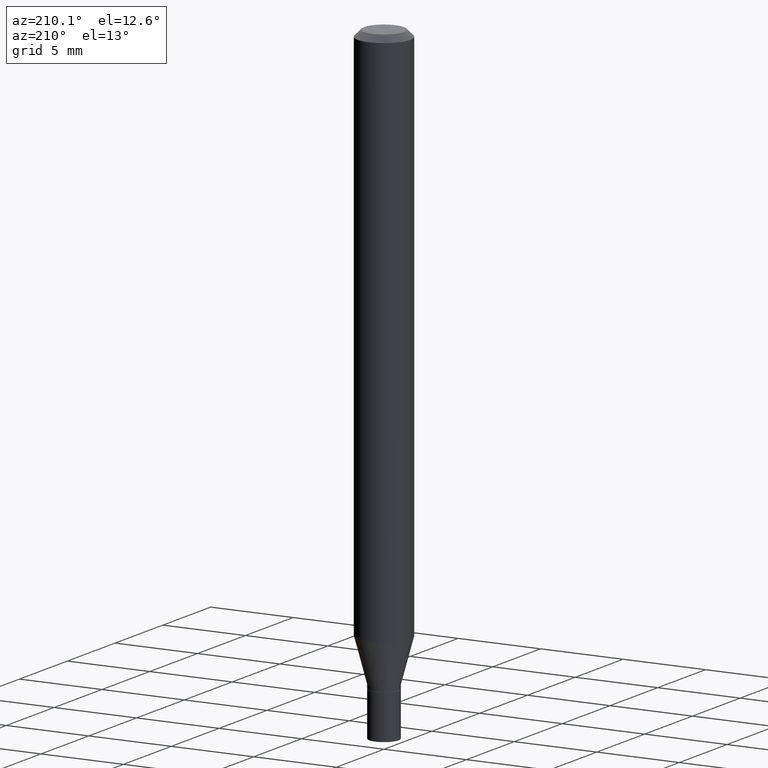
[diagram: clean part render]
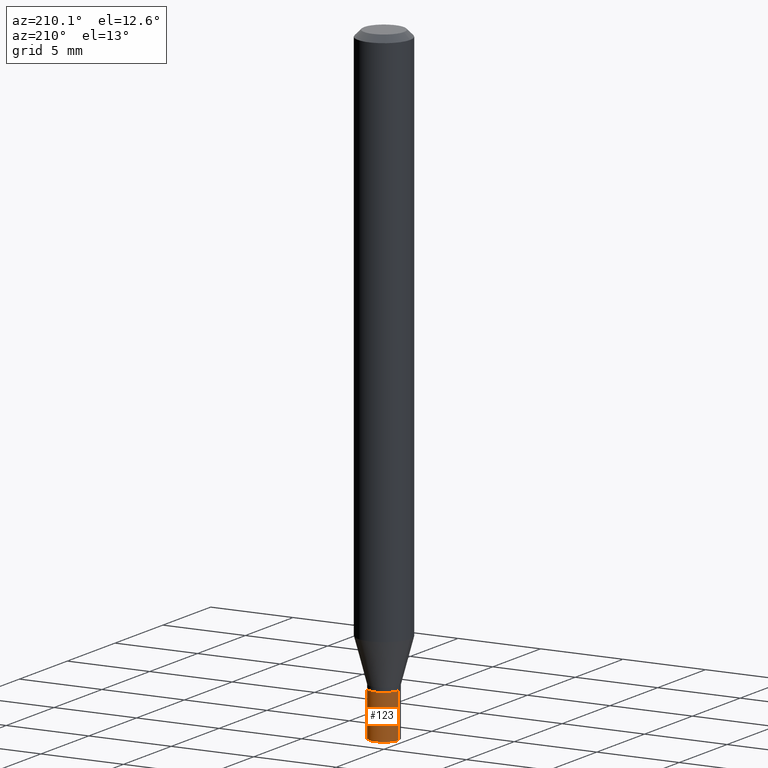
[diagram: same view with one face highlighted and labeled with its STEP entity id]
A machine part, auxiliary view. The second image highlights one B-rep face of the part: STEP entity #123.
In plain terms, the highlighted cylindrical surface (edge-blend (fillet) strip) has radius 0.889 mm, axis along (-0, 0, 1).
Its self-contained STEP definition (entity closure, byte-faithful):
#6 = LINE ( 'NONE', #365, #210 ) ;
#26 = EDGE_CURVE ( 'NONE', #150, #185, #219, .T. ) ;
#27 = CYLINDRICAL_SURFACE ( 'NONE', #39, 0.03500000000000000333 ) ;
#39 = AXIS2_PLACEMENT_3D ( 'NONE', #419, #389, #422 ) ;
#57 = AXIS2_PLACEMENT_3D ( 'NONE', #444, #122, #264 ) ;
#65 = VERTEX_POINT ( 'NONE', #105 ) ;
#70 = CIRCLE ( 'NONE', #79, 0.03500000000000000333 ) ;
#71 = DIRECTION ( 'NONE',  ( -2.445468806185136877E-29, 3.491481338843145188E-15, 1.000000000000000000 ) ) ;
#72 = ORIENTED_EDGE ( 'NONE', *, *, #26, .T. ) ;
#73 = CARTESIAN_POINT ( 'NONE',  ( 0.03500000000000000333, -5.481625701983738143E-15, -1.500000000000000222 ) ) ;
#75 = CARTESIAN_POINT ( 'NONE',  ( -0.03500000000000000333, 2.486899575160350887E-16, -1.721627281589217108E-30 ) ) ;
#76 = ORIENTED_EDGE ( 'NONE', *, *, #407, .F. ) ;
#79 = AXIS2_PLACEMENT_3D ( 'NONE', #186, #224, #152 ) ;
#81 = CARTESIAN_POINT ( 'NONE',  ( -0.03500000000000000333, -4.805229280459417916E-15, -1.500000000000000222 ) ) ;
#85 = EDGE_LOOP ( 'NONE', ( #72, #140, #76, #162 ) ) ;
#98 = EDGE_CURVE ( 'NONE', #185, #454, #139, .T. ) ;
#105 = CARTESIAN_POINT ( 'NONE',  ( 0.03500000000000000333, -5.115020161405208194E-15, -1.395000000000000018 ) ) ;
#122 = DIRECTION ( 'NONE',  ( -2.445468806185136597E-29, 3.491481338843145583E-15, 1.000000000000000000 ) ) ;
#123 = ADVANCED_FACE ( 'NONE', ( #393 ), #27, .T. ) ;
#139 = LINE ( 'NONE', #75, #265 ) ;
#140 = ORIENTED_EDGE ( 'NONE', *, *, #98, .T. ) ;
#150 = VERTEX_POINT ( 'NONE', #73 ) ;
#152 = DIRECTION ( 'NONE',  ( 1.000000000000000000, -6.982962677686276966E-15, 0.000000000000000000 ) ) ;
#162 = ORIENTED_EDGE ( 'NONE', *, *, #400, .F. ) ;
#185 = VERTEX_POINT ( 'NONE', #81 ) ;
#186 = CARTESIAN_POINT ( 'NONE',  ( 3.411428984628265351E-29, -4.870616467686188228E-15, -1.395000000000000018 ) ) ;
#189 = DIRECTION ( 'NONE',  ( -2.445468806185136877E-29, 3.491481338843145188E-15, 1.000000000000000000 ) ) ;
#210 = VECTOR ( 'NONE', #189, 39.37007874015748143 ) ;
#219 = CIRCLE ( 'NONE', #57, 0.03500000000000000333 ) ;
#224 = DIRECTION ( 'NONE',  ( -2.445468806185136597E-29, 3.491481338843145583E-15, 1.000000000000000000 ) ) ;
#264 = DIRECTION ( 'NONE',  ( 1.000000000000000000, -6.982962677686276966E-15, 0.000000000000000000 ) ) ;
#265 = VECTOR ( 'NONE', #71, 39.37007874015748143 ) ;
#330 = CARTESIAN_POINT ( 'NONE',  ( -0.03500000000000000333, -4.805229280459417916E-15, -1.395000000000000018 ) ) ;
#365 = CARTESIAN_POINT ( 'NONE',  ( 0.03500000000000000333, -2.444036937190193250E-16, 1.706661871528577808E-30 ) ) ;
#389 = DIRECTION ( 'NONE',  ( -2.445468806185136597E-29, 3.491481338843145583E-15, 1.000000000000000000 ) ) ;
#393 = FACE_OUTER_BOUND ( 'NONE', #85, .T. ) ;
#400 = EDGE_CURVE ( 'NONE', #150, #65, #6, .T. ) ;
#407 = EDGE_CURVE ( 'NONE', #65, #454, #70, .T. ) ;
#419 = CARTESIAN_POINT ( 'NONE',  ( 0.000000000000000000, 0.000000000000000000, 0.000000000000000000 ) ) ;
#422 = DIRECTION ( 'NONE',  ( 1.000000000000000000, -6.982962677686265922E-15, 4.876176775795936353E-29 ) ) ;
#444 = CARTESIAN_POINT ( 'NONE',  ( 3.668203209277704895E-29, -5.237222008264718177E-15, -1.500000000000000222 ) ) ;
#454 = VERTEX_POINT ( 'NONE', #330 ) ;